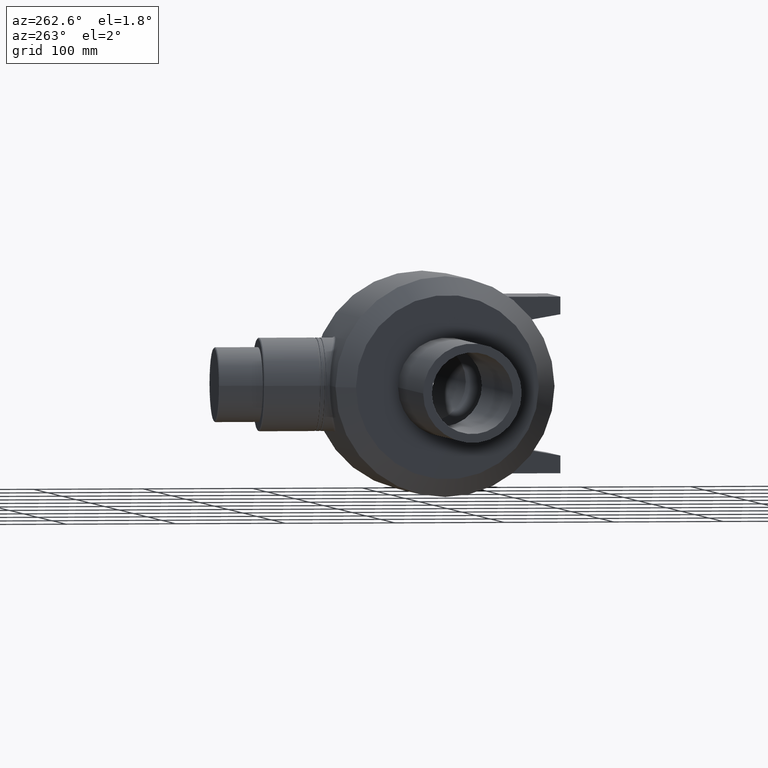
[diagram: clean part render]
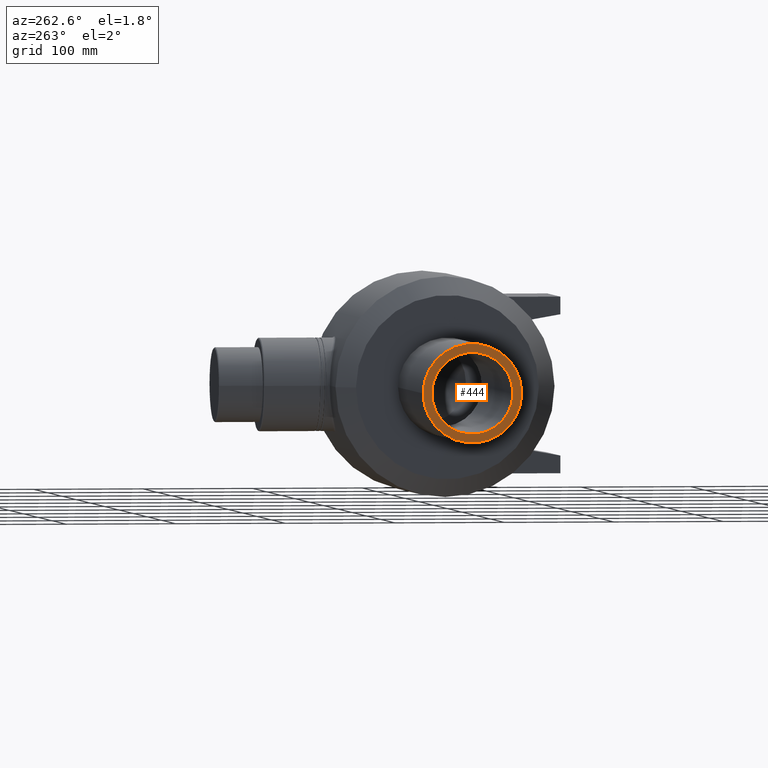
[diagram: same view with one face highlighted and labeled with its STEP entity id]
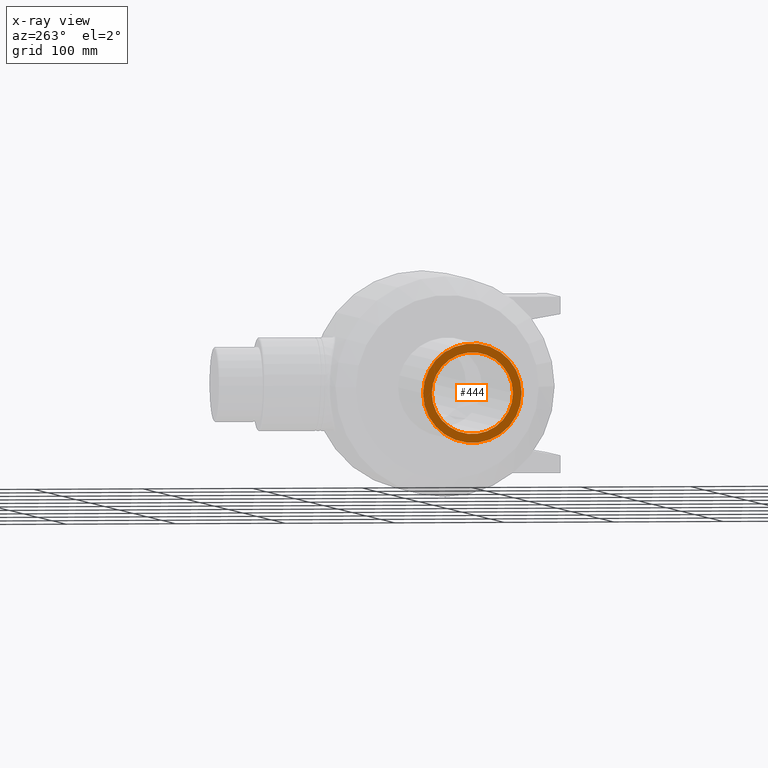
[diagram: x-ray of the same camera — body ghosted, the highlighted face saturated]
A machine part, auxiliary view. The second image highlights one B-rep face of the part: STEP entity #444.
The next image is the same camera in x-ray: the body ghosted, the highlighted face saturated — about 0% of this face is hidden behind the body in this view.
In plain terms, the highlighted planar face has unit normal (-1, 0, 0).
Its self-contained STEP definition (entity closure, byte-faithful):
#33=PLANE('',#503);
#101=FACE_BOUND('',#198,.T.);
#142=FACE_OUTER_BOUND('',#197,.T.);
#197=EDGE_LOOP('',(#408));
#198=EDGE_LOOP('',(#409));
#227=CIRCLE('',#502,37.);
#228=CIRCLE('',#504,45.);
#266=VERTEX_POINT('',#931);
#267=VERTEX_POINT('',#934);
#314=EDGE_CURVE('',#266,#266,#227,.T.);
#315=EDGE_CURVE('',#267,#267,#228,.T.);
#408=ORIENTED_EDGE('',*,*,#315,.F.);
#409=ORIENTED_EDGE('',*,*,#314,.T.);
#444=ADVANCED_FACE('',(#142,#101),#33,.T.);
#502=AXIS2_PLACEMENT_3D('',#932,#636,#637);
#503=AXIS2_PLACEMENT_3D('',#933,#638,#639);
#504=AXIS2_PLACEMENT_3D('',#935,#640,#641);
#636=DIRECTION('center_axis',(1.,0.,0.));
#637=DIRECTION('ref_axis',(0.,0.,-1.));
#638=DIRECTION('center_axis',(-1.,0.,0.));
#639=DIRECTION('ref_axis',(0.,0.,1.));
#640=DIRECTION('center_axis',(1.,0.,0.));
#641=DIRECTION('ref_axis',(0.,0.,-1.));
#931=CARTESIAN_POINT('',(-275.,37.,0.));
#932=CARTESIAN_POINT('Origin',(-275.,0.,0.));
#933=CARTESIAN_POINT('Origin',(-275.,45.,0.));
#934=CARTESIAN_POINT('',(-275.,45.,0.));
#935=CARTESIAN_POINT('Origin',(-275.,0.,0.));